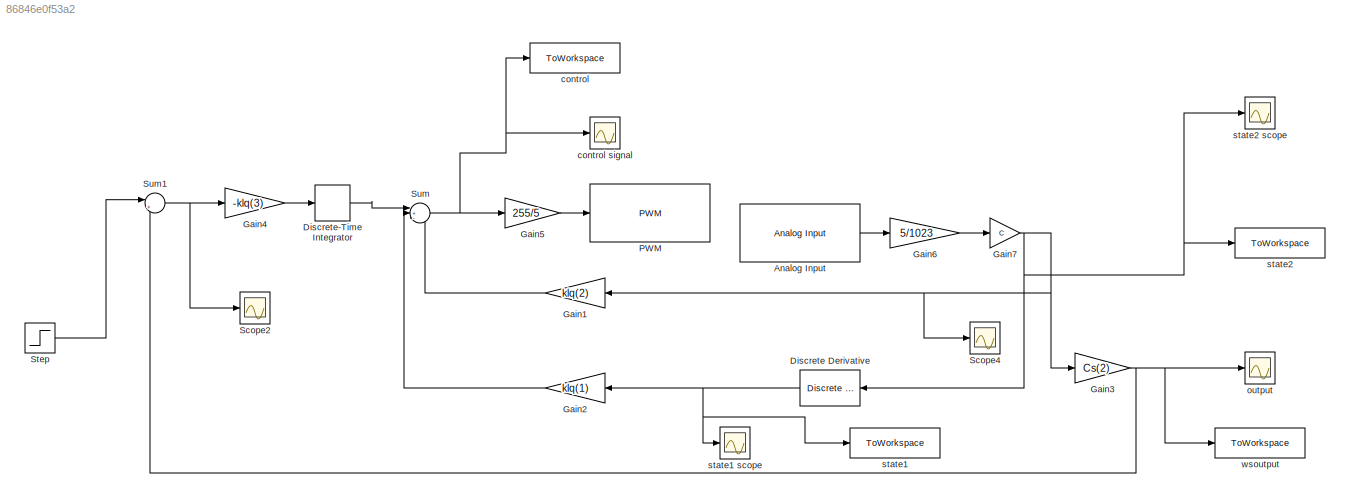
MODEL slx_86846e0f53a2
KIND model
CONFIG AbsTol = auto
CONFIG EnableMultiTasking = on
CONFIG FixedStep = auto
CONFIG MaxStep = auto
CONFIG MinStep = auto
CONFIG RelTol = 1e-3
CONFIG SampleTimeConstraint = Unconstrained
CONFIG SolverName = FixedStepAuto
CONFIG StartTime = 0.0
CONFIG StopTime = 4
BLOCK [Reference] Analog Input  REF=arduinolib/Analog Input
  SourceBlock = arduinolib/Analog Input
  SourceType = Arduino Analog Input
BLOCK [Reference] Discrete Derivative  REF=simulink/Discrete/Discrete Derivative
  NameLocation = top
  SourceBlock = simulink/Discrete/Discrete Derivative
  SourceType = Discrete Derivative
BLOCK [DiscreteIntegrator] Discrete-Time Integrator
  ICPrevOutput = DiscIntNeverNeededParam
  ICPrevScaledInput = DiscIntNeverNeededParam
  InitialConditionSetting = Auto
  OutDataTypeStr = double
  SampleTime = 0.01
BLOCK [Gain] Gain1
  Gain = klq(2)
  NameLocation = top
BLOCK [Gain] Gain2
  Gain = klq(1)
  NameLocation = top
BLOCK [Gain] Gain3
  Gain = Cs(2)
BLOCK [Gain] Gain4
  Gain = -klq(3)
  OutDataTypeStr = double
BLOCK [Gain] Gain5
  Gain = 255/5
BLOCK [Gain] Gain6
  Gain = 5/1023
BLOCK [Gain] Gain7
  Gain = C
BLOCK [Reference] PWM  REF=arduinolib/PWM
  SourceBlock = arduinolib/PWM
  SourceType = Arduino PWM
BLOCK [Scope] Scope2
  Floating = off
  NumInputPorts = 1
  ScopeSpecificationString = Simulink.scopes.TimeScopeBlockCfg('CurrentConfiguration', extmgr.ConfigurationSet(extmgr.Configuration('Core','General UI',true),extmgr.Configuration('Core','Source UI',true),extmgr.Configuration('Sources','WiredSimulink',true,'DataLoggingVariableName','ScopeData2'),extmgr.Configuration('Visuals','Time Domain',true,'SerializedDisplays',{struct('MinYLimReal','-1.08394','MaxYLimReal','1.23155','YLab...<+1363ch>
BLOCK [Scope] Scope4
  Floating = off
  NumInputPorts = 1
  ScopeSpecificationString = Simulink.scopes.TimeScopeBlockCfg('CurrentConfiguration', extmgr.ConfigurationSet(extmgr.Configuration('Core','General UI',true),extmgr.Configuration('Core','Source UI',true),extmgr.Configuration('Sources','WiredSimulink',true,'DataLoggingVariableName','ScopeData4'),extmgr.Configuration('Visuals','Time Domain',true,'SerializedDisplays',{struct('MinYLimReal','-0.00011','MaxYLimReal','0.00098','YLab...<+1364ch>
BLOCK [Step] Step
  SampleTime = 0.01
BLOCK [Sum] Sum
  Inputs = |+--
BLOCK [Sum] Sum1
  Inputs = |+-
BLOCK [ToWorkspace] control
  FixptAsFi = on
  MaxDataPoints = inf
  SampleTime = 0.01
  VariableName = cs
BLOCK [Scope] control signal
  Floating = off
  NumInputPorts = 1
  ScopeSpecificationString = Simulink.scopes.TimeScopeBlockCfg('CurrentConfiguration', extmgr.ConfigurationSet(extmgr.Configuration('Core','General UI',true),extmgr.Configuration('Core','Source UI',true),extmgr.Configuration('Sources','WiredSimulink',true,'DataLoggingVariableName','ScopeData1'),extmgr.Configuration('Visuals','Time Domain',true,'SerializedDisplays',{struct('MinYLimReal','-27.72234','MaxYLimReal','5.12283','YLa...<+1366ch>
BLOCK [Scope] output
  Floating = off
  NumInputPorts = 1
  ScopeSpecificationString = Simulink.scopes.TimeScopeBlockCfg('CurrentConfiguration', extmgr.ConfigurationSet(extmgr.Configuration('Core','General UI',true),extmgr.Configuration('Core','Source UI',true),extmgr.Configuration('Sources','WiredSimulink',true),extmgr.Configuration('Visuals','Time Domain',true,'SerializedDisplays',{struct('MinYLimReal','-0.12586','MaxYLimReal','1.1327','YLabelReal','','MinYLimMag','0.00000','MaxYL...<+1348ch>
BLOCK [ToWorkspace] state1
  FixptAsFi = on
  MaxDataPoints = inf
  SampleTime = 0.01
  VariableName = state1
BLOCK [Scope] state1 scope
  Floating = off
  NumInputPorts = 1
  ScopeSpecificationString = Simulink.scopes.TimeScopeBlockCfg('CurrentConfiguration', extmgr.ConfigurationSet(extmgr.Configuration('Core','General UI',true),extmgr.Configuration('Core','Source UI',true),extmgr.Configuration('Sources','WiredSimulink',true,'DataLoggingVariableName','ScopeData3'),extmgr.Configuration('Visuals','Time Domain',true,'SerializedDisplays',{struct('MinYLimReal','-3.12497','MaxYLimReal','28.12474','YLa...<+1382ch>
BLOCK [ToWorkspace] state2
  FixptAsFi = on
  MaxDataPoints = inf
  SampleTime = 0.01
  VariableName = state2
BLOCK [Scope] state2 scope
  Floating = off
  NumInputPorts = 1
  ScopeSpecificationString = Simulink.scopes.TimeScopeBlockCfg('CurrentConfiguration', extmgr.ConfigurationSet(extmgr.Configuration('Core','General UI',true),extmgr.Configuration('Core','Source UI',true),extmgr.Configuration('Sources','WiredSimulink',true,'DataLoggingVariableName','ScopeData1'),extmgr.Configuration('Visuals','Time Domain',true,'SerializedDisplays',{struct('MinYLimReal','-0.2175','MaxYLimReal','1.95748','YLabe...<+1433ch>
BLOCK [ToWorkspace] wsoutput
  FixptAsFi = on
  MaxDataPoints = inf
  SampleTime = 0.01
  VariableName = out
LINE Analog Input:1 -> Gain6:1
NET Discrete Derivative:1 -> Gain2:1, state1 scope:1, state1:1
LINE Discrete-Time Integrator:1 -> Sum:1
LINE Gain1:1 -> Sum:3
LINE Gain2:1 -> Sum:2
NET Gain3:1 -> Sum1:2, output:1, wsoutput:1
LINE Gain4:1 -> Discrete-Time Integrator:1
LINE Gain5:1 -> PWM:1
LINE Gain6:1 -> Gain7:1
NET Gain7:1 -> Discrete Derivative:1, Gain1:1, Gain3:1, Scope4:1, state2 scope:1, state2:1
LINE Step:1 -> Sum1:1
NET Sum1:1 -> Gain4:1, Scope2:1
NET Sum:1 -> Gain5:1, control signal:1, control:1
note: NET lines group one-source signal fan-out (src -> all destinations, sorted); 1:1 wires keep LINE
